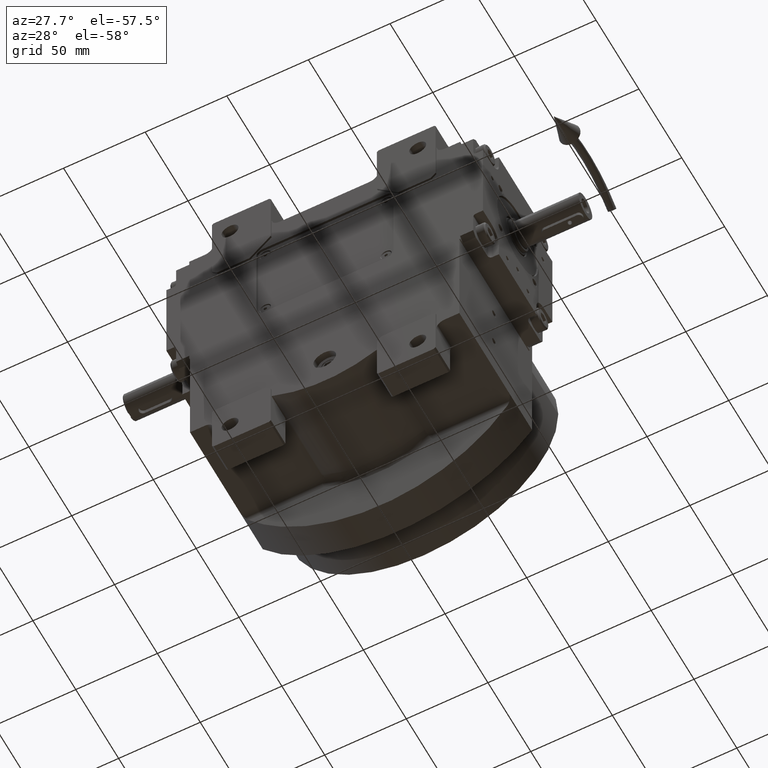
[diagram: clean part render]
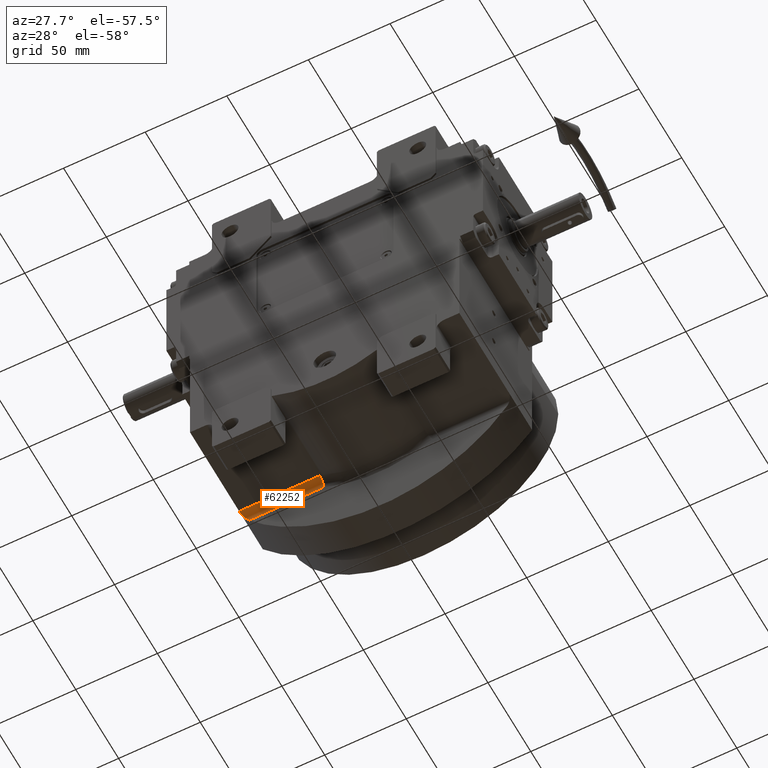
[diagram: same view with one face highlighted and labeled with its STEP entity id]
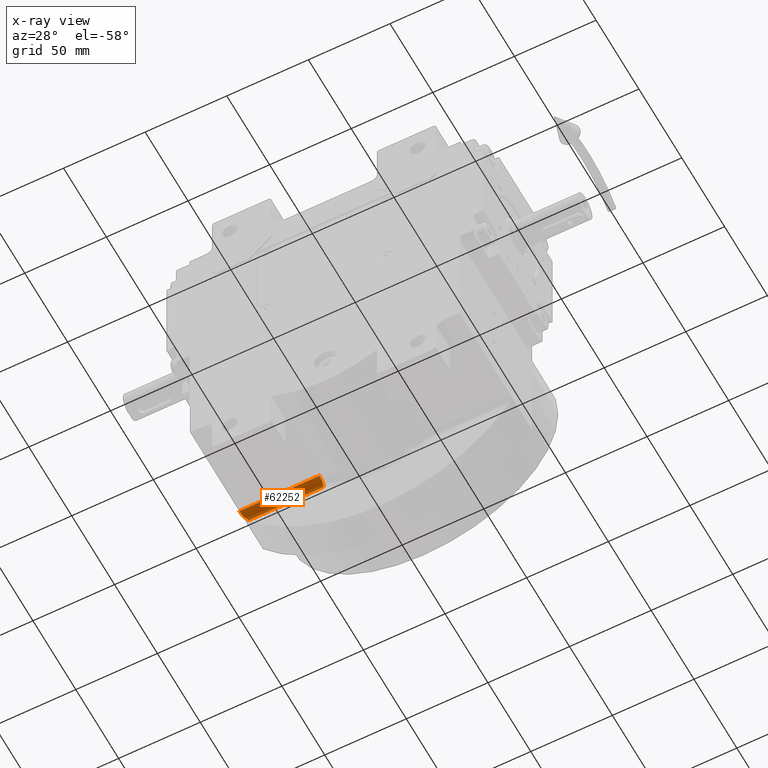
[diagram: x-ray of the same camera — body ghosted, the highlighted face saturated]
A machine part, auxiliary view. The second image highlights one B-rep face of the part: STEP entity #62252.
The next image is the same camera in x-ray: the body ghosted, the highlighted face saturated — about 0% of this face is hidden behind the body in this view.
In plain terms, the highlighted cylindrical surface (edge-blend (fillet) strip) has radius 5 mm, axis along (1, 0, 0).
Its self-contained STEP definition (entity closure, byte-faithful):
#639 = EDGE_CURVE ( 'NONE', #38742, #52436, #47748, .T. ) ;
#1275 = EDGE_CURVE ( 'NONE', #22194, #52306, #59349, .T. ) ;
#1402 = CARTESIAN_POINT ( 'NONE',  ( -80.51481584605495812, 21.36195474809392891, -61.19021373771372652 ) ) ;
#1723 = CARTESIAN_POINT ( 'NONE',  ( -80.20424840609429395, 21.54042978903339645, -61.59365602934637707 ) ) ;
#2037 = CARTESIAN_POINT ( 'NONE',  ( -82.18817833712013510, 18.95810624168983338, -58.93489948096387110 ) ) ;
#2360 = CARTESIAN_POINT ( 'NONE',  ( -82.39684885677273485, 18.29445221631914009, -58.64535851625800689 ) ) ;
#2674 = CARTESIAN_POINT ( 'NONE',  ( -82.01948044624195688, 19.42585975081978944, -59.16830358708783422 ) ) ;
#4016 = CARTESIAN_POINT ( 'NONE',  ( -33.32502203188484913, 21.89931762037159757, -63.06422128626171286 ) ) ;
#6364 = LINE ( 'NONE', #16102, #57894 ) ;
#6700 = ORIENTED_EDGE ( 'NONE', *, *, #639, .F. ) ;
#7122 = CARTESIAN_POINT ( 'NONE',  ( -33.32502203188484913, 16.91834412991290293, -58.50000000000000000 ) ) ;
#7562 = CARTESIAN_POINT ( 'NONE',  ( -79.04714209825419857, 21.89931762037159757, -63.06422128626171286 ) ) ;
#9166 = DIRECTION ( 'NONE',  ( 0.000000000000000000, -6.938893903907232322E-16, 1.000000000000000000 ) ) ;
#9781 = EDGE_LOOP ( 'NONE', ( #6700, #42122, #54348, #45859 ) ) ;
#11129 = CARTESIAN_POINT ( 'NONE',  ( -80.27860717920268030, 21.49925890274865381, -61.49721705929056270 ) ) ;
#11225 = DIRECTION ( 'NONE',  ( -1.000000000000000000, 0.000000000000000000, 0.000000000000000000 ) ) ;
#11452 = CARTESIAN_POINT ( 'NONE',  ( -80.12842679020312175, 21.58080859296140730, -61.69183025208548088 ) ) ;
#11776 = CARTESIAN_POINT ( 'NONE',  ( -81.92755116913107827, 19.62953403434189070, -59.29481147433178734 ) ) ;
#13056 = DIRECTION ( 'NONE',  ( 1.000000000000000000, 0.000000000000000000, 0.000000000000000000 ) ) ;
#14020 = EDGE_CURVE ( 'NONE', #52306, #38742, #23725, .T. ) ;
#16102 = CARTESIAN_POINT ( 'NONE',  ( -33.32502203188484913, 16.91834412991290293, -58.50000000000000000 ) ) ;
#16634 = CARTESIAN_POINT ( 'NONE',  ( -81.72912275488519640, 20.02336032153224465, -59.56685795275570428 ) ) ;
#21770 = CARTESIAN_POINT ( 'NONE',  ( -80.98624644766000813, 20.97105402362710080, -60.56742782993570273 ) ) ;
#22080 = CARTESIAN_POINT ( 'NONE',  ( -82.11413870244251711, 19.17640775850521706, -59.03747797673931075 ) ) ;
#22194 = VERTEX_POINT ( 'NONE', #7122 ) ;
#22954 = DIRECTION ( 'NONE',  ( -4.163336342344339393E-15, 1.387778780781446464E-15, 1.000000000000000000 ) ) ;
#23362 = CARTESIAN_POINT ( 'NONE',  ( -32.83418255755020709, 16.91834412991290293, -63.50000000000000000 ) ) ;
#23725 = LINE ( 'NONE', #4016, #63907 ) ;
#25669 = CARTESIAN_POINT ( 'NONE',  ( -33.32502203188484913, 21.89931762037159757, -63.06422128626171286 ) ) ;
#26301 = CARTESIAN_POINT ( 'NONE',  ( -81.33609102444246730, 20.58412511646597665, -60.09914755126264652 ) ) ;
#27250 = CARTESIAN_POINT ( 'NONE',  ( -81.11883898710647145, 20.83930836702879219, -60.39077376549800391 ) ) ;
#31494 = CARTESIAN_POINT ( 'NONE',  ( -81.39498484016964142, 20.50852863369454937, -60.01977494073535979 ) ) ;
#31799 = CARTESIAN_POINT ( 'NONE',  ( -81.36607944202090437, 20.54591119842016056, -60.05874453835777871 ) ) ;
#32124 = CARTESIAN_POINT ( 'NONE',  ( -82.49601985882750910, 17.62754433642036389, -58.50558214806272872 ) ) ;
#36347 = CARTESIAN_POINT ( 'NONE',  ( -79.95003047960310028, 21.66726030743307874, -61.92194395876539659 ) ) ;
#36355 = EDGE_CURVE ( 'NONE', #22194, #52436, #6364, .T. ) ;
#37851 = DIRECTION ( 'NONE',  ( -1.000000000000000000, -1.548563323126480057E-15, -4.263256414560595435E-15 ) ) ;
#38742 = VERTEX_POINT ( 'NONE', #42765 ) ;
#41212 = CARTESIAN_POINT ( 'NONE',  ( -81.57741936295431628, 20.26788147318732669, -59.77360383890905382 ) ) ;
#41531 = CARTESIAN_POINT ( 'NONE',  ( -80.71124185557013675, 21.21846151542565195, -60.93204789127204180 ) ) ;
#41760 = AXIS2_PLACEMENT_3D ( 'NONE', #23362, #13056, #9166 ) ;
#42122 = ORIENTED_EDGE ( 'NONE', *, *, #14020, .F. ) ;
#42765 = CARTESIAN_POINT ( 'NONE',  ( -79.04714209825419857, 21.89931762037159757, -63.06422128626171286 ) ) ;
#45746 = CARTESIAN_POINT ( 'NONE',  ( -82.50000025268040815, 16.91834885168089997, -58.49999999999780442 ) ) ;
#45859 = ORIENTED_EDGE ( 'NONE', *, *, #36355, .T. ) ;
#46363 = CARTESIAN_POINT ( 'NONE',  ( -79.58728390821065091, 21.80910175760159930, -62.38629793861768746 ) ) ;
#46676 = CARTESIAN_POINT ( 'NONE',  ( -79.26602375749489227, 21.87743103698923264, -62.79126682060910980 ) ) ;
#47748 = B_SPLINE_CURVE_WITH_KNOTS ( 'NONE', 3,
 ( #7562, #46676, #46363, #36347, #11452, #1723, #56368, #11129, #1402, #41531, #21770, #27250, #55736, #26301, #31799, #56058, #31494, #41212, #16634, #11776, #2674, #22080, #51523, #61208, #2037, #2360, #32124, #51205 ),
 .UNSPECIFIED., .F., .F.,
 ( 4, 1, 1, 1, 2, 2, 2, 1, 1, 1, 2, 2, 2, 1, 1, 2, 2, 4 ),
 ( 0.000000000000000000, 0.1249999999999864830, 0.1874999999999781009, 0.2187499999999750200, 0.2343749999999729661, 0.2499999999999709122, 0.3749999999999693578, 0.4374999999999674705, 0.4687499999999676925, 0.4843749999999690248, 0.4921874999999693578, 0.4999999999999696909, 0.6249999999999751310, 0.6874999999999793499, 0.7187499999999809042, 0.7343749999999814593, 0.7499999999999819034, 1.000000000000000000 ),
 .UNSPECIFIED. ) ;
#47956 = CYLINDRICAL_SURFACE ( 'NONE', #41760, 4.999999999999997335 ) ;
#47997 = DIRECTION ( 'NONE',  ( -1.000000000000000000, 0.000000000000000000, 0.000000000000000000 ) ) ;
#48005 = AXIS2_PLACEMENT_3D ( 'NONE', #57229, #37851, #22954 ) ;
#48279 = FACE_OUTER_BOUND ( 'NONE', #9781, .T. ) ;
#51205 = CARTESIAN_POINT ( 'NONE',  ( -82.50000025268040815, 16.91834885168089997, -58.49999999999780442 ) ) ;
#51523 = CARTESIAN_POINT ( 'NONE',  ( -82.15202258272368852, 19.06696433432636084, -58.98501332906405281 ) ) ;
#52306 = VERTEX_POINT ( 'NONE', #25669 ) ;
#52436 = VERTEX_POINT ( 'NONE', #45746 ) ;
#54348 = ORIENTED_EDGE ( 'NONE', *, *, #1275, .F. ) ;
#55736 = CARTESIAN_POINT ( 'NONE',  ( -81.26507269813426149, 20.67153175727413839, -60.19468085035670413 ) ) ;
#56058 = CARTESIAN_POINT ( 'NONE',  ( -81.38597234681162718, 20.52026771325004262, -60.03192930007764261 ) ) ;
#56368 = CARTESIAN_POINT ( 'NONE',  ( -80.25465571364438233, 21.51277101549150217, -61.52830606318158146 ) ) ;
#57229 = CARTESIAN_POINT ( 'NONE',  ( -33.32502203188480649, 16.91834412991284964, -63.50000000000000000 ) ) ;
#57894 = VECTOR ( 'NONE', #11225, 1000.000000000000000 ) ;
#59349 = CIRCLE ( 'NONE', #48005, 4.999999999999997335 ) ;
#61208 = CARTESIAN_POINT ( 'NONE',  ( -82.17668361585674575, 18.99343862321323329, -58.95083879551732053 ) ) ;
#62252 = ADVANCED_FACE ( 'NONE', ( #48279 ), #47956, .F. ) ;
#63907 = VECTOR ( 'NONE', #47997, 1000.000000000000000 ) ;